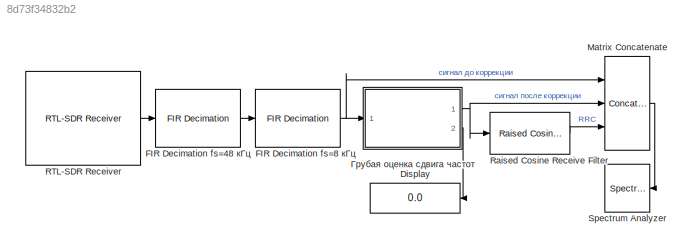
MODEL slx_8d73f34832b2
KIND model
CONFIG AbsTol = auto
CONFIG EnableMultiTasking = off
CONFIG FixedStep = auto
CONFIG MaxStep = auto
CONFIG MinStep = auto
CONFIG PreLoadFcn = Hd1 = dsp.FIRDecimator (5);\nHd2 = dsp.FIRDecimator (6);
CONFIG RelTol = 1e-3
CONFIG SampleTimeConstraint = Unconstrained
CONFIG Solver = VariableStepAuto
CONFIG SolverName = VariableStepAuto
CONFIG StartTime = 0.0
CONFIG StopTime = inf
BLOCK [Display] Display
  Decimation = 1
  Ports = [1]
BLOCK [Reference] FIR Decimation  fs=8 кГц  REF=dspmlti4/FIR
Decimation
  Ports = [1, 1]
  SourceBlock = dspmlti4/FIR\nDecimation
  SourceProductBaseCode = DS
  SourceProductName = DSP System Toolbox
  SourceType = FIR Decimation
  UserDataPersistent = on
BLOCK [Reference] FIR Decimation fs=48 кГц  REF=dspmlti4/FIR
Decimation
  Ports = [1, 1]
  SourceBlock = dspmlti4/FIR\nDecimation
  SourceProductBaseCode = DS
  SourceProductName = DSP System Toolbox
  SourceType = FIR Decimation
  UserDataPersistent = on
BLOCK [Concatenate] Matrix Concatenate
  ConcatenateDimension = 2
  Mode = Multidimensional array
  NumInputs = 3
  Ports = [3, 1]
BLOCK [Reference] RTL-SDR Receiver  REF=sdrrlib/RTL-SDR
Receiver
  Ports = [0, 1]
  SourceBlock = sdrrlib/RTL-SDR\nReceiver
  SourceProductBaseCode = RTLSDR
  SourceProductName = Communications System Toolbox Support Package for RTL-SDR Radio
  SourceType = RTL-SDR Receiver
BLOCK [Reference] Raised Cosine Receive Filter  REF=commfilt2/Raised Cosine
Receive Filter
  Ports = [1, 1]
  SourceBlock = commfilt2/Raised Cosine\nReceive Filter
  SourceProductBaseCode = CM
  SourceProductName = Communications System Toolbox
  SourceType = Raised Cosine Receive Filter
BLOCK [SpectrumAnalyzer] Spectrum Analyzer
  Ports = [1]
  ScopeSpecificationString = spbscopes.SpectrumAnalyzerBlockCfg('CurrentConfiguration', extmgr.ConfigurationSet(extmgr.Configuration('Core','General UI',true,'FigureColor',[1 1 1]),extmgr.Configuration('Core','Source UI',true),extmgr.Configuration('Sources','WiredSimulink',true),extmgr.Configuration('Sources','SimulinkEvent',false),extmgr.Configuration('Sources','Simulink',false),extmgr.Configuration('Sources','SPTool',false)...<+3354ch>
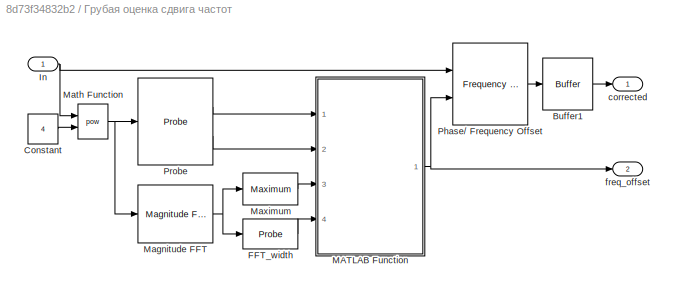
BLOCK [SubSystem] Грубая оценка сдвига частот
  Ports = [1, 2]
  RequestExecContextInheritance = off
BLOCK [Buffer] Грубая оценка сдвига частот/Buffer1
  N = frame_size
  OutputFrames = off
BLOCK [Constant] Грубая оценка сдвига частот/Constant
  Value = 4
BLOCK [Probe] Грубая оценка сдвига частот/FFT_width
  Ports = [1, 1]
  ProbeComplexSignal = off
  ProbeSampleTime = off
BLOCK [Inport] Грубая оценка сдвига частот/In
  IconDisplay = Port number
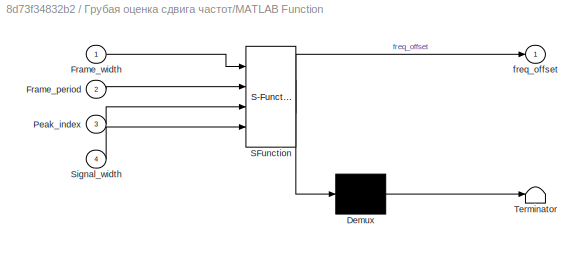
BLOCK [SubSystem] Грубая оценка сдвига частот/MATLAB Function
  ErrorFcn = Stateflow.Translate.translate
  PermitHierarchicalResolution = ExplicitOnly
  Ports = [4, 1]
  RequestExecContextInheritance = off
  SFBlockType = MATLAB Function
  TreatAsAtomicUnit = on
BLOCK [Demux] Грубая оценка сдвига частот/MATLAB Function/ Demux 
  Outputs = 1
  Ports = [1, 1]
BLOCK [S-Function] Грубая оценка сдвига частот/MATLAB Function/ SFunction 
  EnableBusSupport = on
  FunctionName = sf_sfun
  PortCounts = [4 2]
  Ports = [4, 2]
  SFcnIsStateOwnerBlock = off
  SFunctionDeploymentMode = off
  Tag = Stateflow S-Function lab764_rtlsdr_qpsk_coarse_synch 2
BLOCK [Terminator] Грубая оценка сдвига частот/MATLAB Function/ Terminator 
BLOCK [Inport] Грубая оценка сдвига частот/MATLAB Function/Frame_period
  IconDisplay = Port number
  Port = 2
BLOCK [Inport] Грубая оценка сдвига частот/MATLAB Function/Frame_width
  IconDisplay = Port number
BLOCK [Inport] Грубая оценка сдвига частот/MATLAB Function/Peak_index
  IconDisplay = Port number
  Port = 3
BLOCK [Inport] Грубая оценка сдвига частот/MATLAB Function/Signal_width
  IconDisplay = Port number
  Port = 4
BLOCK [Outport] Грубая оценка сдвига частот/MATLAB Function/freq_offset
  IconDisplay = Port number
BLOCK [Reference] Грубая оценка сдвига частот/Magnitude FFT  REF=dspspect3/Magnitude
FFT
  Ports = [1, 1]
  SourceBlock = dspspect3/Magnitude\nFFT
  SourceProductBaseCode = DS
  SourceProductName = DSP System Toolbox
  SourceType = Magnitude FFT
BLOCK [Math] Грубая оценка сдвига частот/Math Function
  Operator = pow
  Ports = [2, 1]
BLOCK [Reference] Грубая оценка сдвига частот/Maximum  REF=dspstat3/Maximum
  Ports = [1, 1]
  SourceBlock = dspstat3/Maximum
  SourceProductBaseCode = DS
  SourceProductName = DSP System Toolbox
  SourceType = Maximum
  UserDataPersistent = on
BLOCK [Reference] Грубая оценка сдвига частот/Phase// Frequency Offset  REF=commrflib2/Phase//
Frequency
Offset
  Ports = [2, 1]
  SourceBlock = commrflib2/Phase//\nFrequency\nOffset
  SourceProductBaseCode = CM
  SourceProductName = Communications System Toolbox
  SourceType = Phase/Frequency Offset
BLOCK [Probe] Грубая оценка сдвига частот/Probe
  Ports = [1, 2]
  ProbeComplexSignal = off
BLOCK [Outport] Грубая оценка сдвига частот/corrected
  IconDisplay = Port number
BLOCK [Outport] Грубая оценка сдвига частот/freq_offset
  IconDisplay = Port number
  Port = 2
NET FIR Decimation  fs=8 кГц:1 -> Matrix Concatenate:1, Грубая оценка сдвига частот:1
LINE FIR Decimation fs=48 кГц:1 -> FIR Decimation  fs=8 кГц:1
LINE Matrix Concatenate:1 -> Spectrum Analyzer:1
LINE RTL-SDR Receiver:1 -> FIR Decimation fs=48 кГц:1
LINE Raised Cosine Receive Filter:1 -> Matrix Concatenate:3
LINE Грубая оценка сдвига частот/Buffer1:1 -> Грубая оценка сдвига частот/corrected:1
LINE Грубая оценка сдвига частот/Constant:1 -> Грубая оценка сдвига частот/Math Function:2
LINE Грубая оценка сдвига частот/FFT_width:1 -> Грубая оценка сдвига частот/MATLAB Function:4
NET Грубая оценка сдвига частот/In:1 -> Грубая оценка сдвига частот/Math Function:1, Грубая оценка сдвига частот/Phase// Frequency Offset:1
NET Грубая оценка сдвига частот/MATLAB Function:1 -> Грубая оценка сдвига частот/Phase// Frequency Offset:2, Грубая оценка сдвига частот/freq_offset:1
NET Грубая оценка сдвига частот/Magnitude FFT:1 -> Грубая оценка сдвига частот/FFT_width:1, Грубая оценка сдвига частот/Maximum:1
NET Грубая оценка сдвига частот/Math Function:1 -> Грубая оценка сдвига частот/Magnitude FFT:1, Грубая оценка сдвига частот/Probe:1
LINE Грубая оценка сдвига частот/Maximum:1 -> Грубая оценка сдвига частот/MATLAB Function:3
LINE Грубая оценка сдвига частот/Phase// Frequency Offset:1 -> Грубая оценка сдвига частот/Buffer1:1
LINE Грубая оценка сдвига частот/Probe:1 -> Грубая оценка сдвига частот/MATLAB Function:1
LINE Грубая оценка сдвига частот/Probe:2 -> Грубая оценка сдвига частот/MATLAB Function:2
NET Грубая оценка сдвига частот:1 -> Matrix Concatenate:2, Raised Cosine Receive Filter:1
LINE Грубая оценка сдвига частот:2 -> Display:1
note: NET lines group one-source signal fan-out (src -> all destinations, sorted); 1:1 wires keep LINE
CHART Грубая оценка 
сдвига частот/MATLAB Function states=1 transitions=1
  STATE_LABEL 'eML_blk_kernel()'
  STATE_LABEL 'SCRIPT:\nfunction freq_offset = fcn(Frame_width,Frame_period,...\n                            Peak_index,Signal_width)\n% Оценка требуемого индекса сдвига\nif Peak_index > Signal_width/2\n    offset = (Signal_width+1)-Peak_index;\nelse\n    offset = 1-Peak_index;\nend\n% оценка периода дискретизации\nTs = Frame_period(1)/Frame_width;\n% БПФ разрешение по частоте // fft bin\nfreq_resolution = 1/(Ts*Signal_widt...<+70ch>'
